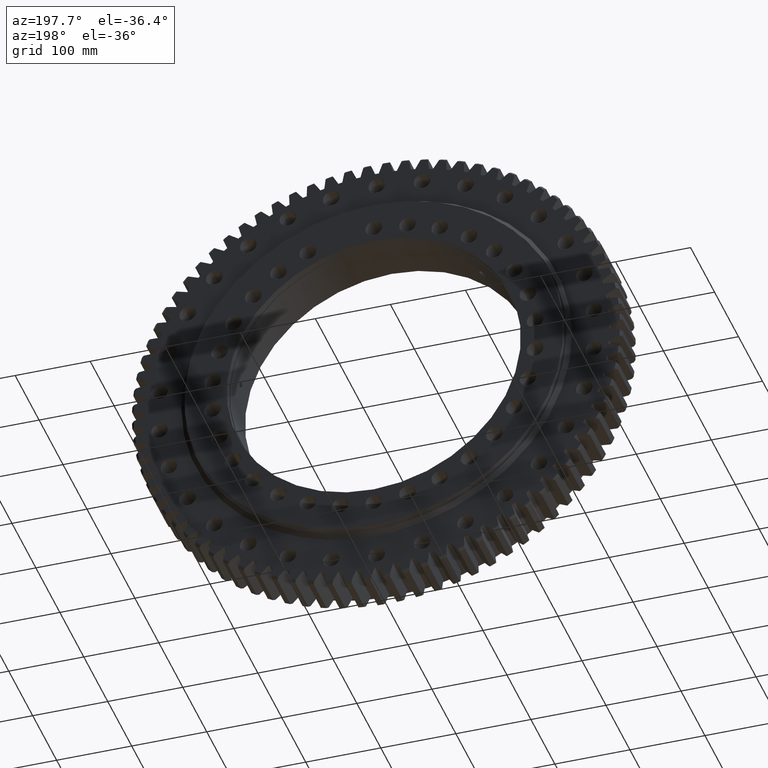
[diagram: clean part render]
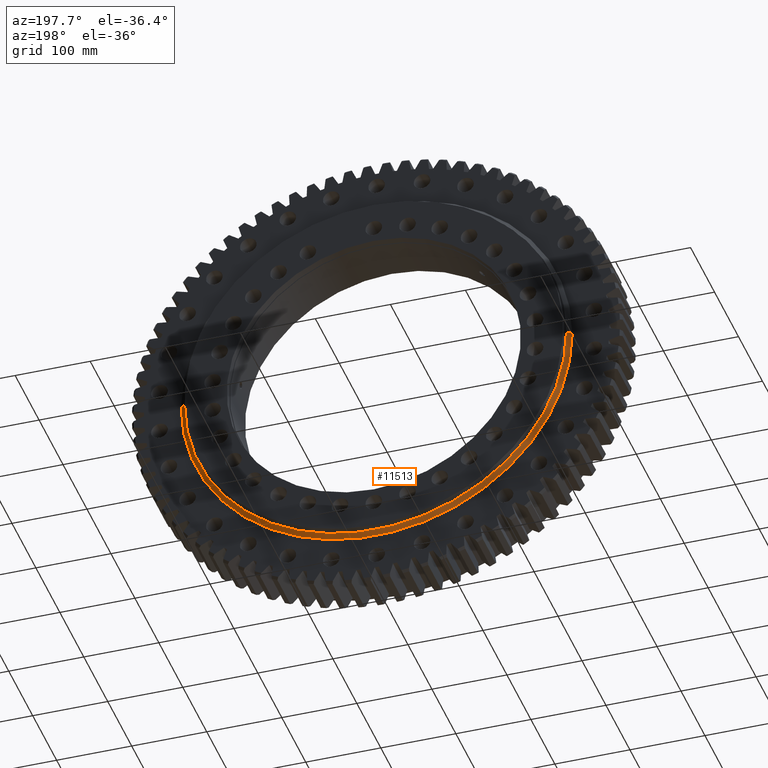
[diagram: same view with one face highlighted and labeled with its STEP entity id]
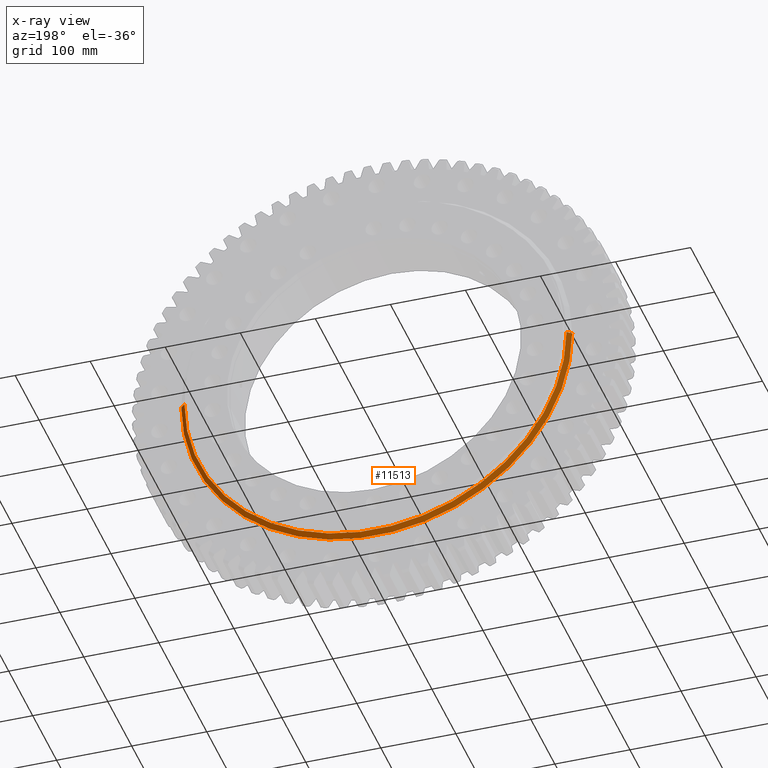
[diagram: x-ray of the same camera — body ghosted, the highlighted face saturated]
A machine part, auxiliary view. The second image highlights one B-rep face of the part: STEP entity #11513.
The next image is the same camera in x-ray: the body ghosted, the highlighted face saturated — about 0% of this face is hidden behind the body in this view.
In plain terms, the highlighted conical surface has half-angle 49.914 deg.
Its self-contained STEP definition (entity closure, byte-faithful):
#7 = DIRECTION ( 'NONE',  ( -0.7650765054985542200, -0.6439393921279554800, 9.369484935616465400E-017 ) ) ;
#2480 = VERTEX_POINT ( 'NONE', #20049 ) ;
#2627 = CIRCLE ( 'NONE', #13087, 254.5000000000000000 ) ;
#2645 = LINE ( 'NONE', #22928, #6332 ) ;
#2776 = CARTESIAN_POINT ( 'NONE',  ( -260.5000000000000000, 30.50000000000000400, 3.190204911778855000E-014 ) ) ;
#2831 = VERTEX_POINT ( 'NONE', #7181 ) ;
#3998 = VERTEX_POINT ( 'NONE', #16151 ) ;
#4066 = EDGE_LOOP ( 'NONE', ( #4861, #19641, #4796, #20512 ) ) ;
#4695 = VECTOR ( 'NONE', #7, 1000.000000000000000 ) ;
#4796 = ORIENTED_EDGE ( 'NONE', *, *, #15043, .T. ) ;
#4861 = ORIENTED_EDGE ( 'NONE', *, *, #10648, .F. ) ;
#6332 = VECTOR ( 'NONE', #13797, 1000.000000000000000 ) ;
#7181 = CARTESIAN_POINT ( 'NONE',  ( -254.5000000000000000, 35.55000000000005400, 3.153465507804434500E-014 ) ) ;
#8980 = LINE ( 'NONE', #10989, #4695 ) ;
#9227 = FACE_OUTER_BOUND ( 'NONE', #4066, .T. ) ;
#9541 = EDGE_CURVE ( 'NONE', #3998, #2831, #2627, .T. ) ;
#10102 = CARTESIAN_POINT ( 'NONE',  ( -1.929864252156052100E-016, 30.49999999999995400, 0.0000000000000000000 ) ) ;
#10648 = EDGE_CURVE ( 'NONE', #2831, #16972, #8980, .T. ) ;
#10782 = DIRECTION ( 'NONE',  ( 1.836909530733565900E-016, 1.000000000000000000, -0.0000000000000000000 ) ) ;
#10880 = AXIS2_PLACEMENT_3D ( 'NONE', #10102, #22954, #11960 ) ;
#10989 = CARTESIAN_POINT ( 'NONE',  ( -260.5000000000000000, 30.50000000000000400, 3.190204911778855700E-014 ) ) ;
#11513 = ADVANCED_FACE ( 'NONE', ( #9227 ), #17289, .T. ) ;
#11561 = DIRECTION ( 'NONE',  ( 1.000000000000000000, -1.864578016405013400E-016, 0.0000000000000000000 ) ) ;
#11960 = DIRECTION ( 'NONE',  ( -1.000000000000000000, 1.864578016405013400E-016, 0.0000000000000000000 ) ) ;
#13087 = AXIS2_PLACEMENT_3D ( 'NONE', #21784, #10782, #23649 ) ;
#13421 = CARTESIAN_POINT ( 'NONE',  ( -1.929864252156052100E-016, 30.49999999999995400, 0.0000000000000000000 ) ) ;
#13797 = DIRECTION ( 'NONE',  ( 0.7650765054985539900, -0.6439393921279557000, 0.0000000000000000000 ) ) ;
#15043 = EDGE_CURVE ( 'NONE', #3998, #2480, #2645, .T. ) ;
#15264 = DIRECTION ( 'NONE',  ( -1.836909530733565900E-016, -1.000000000000000000, 0.0000000000000000000 ) ) ;
#16151 = CARTESIAN_POINT ( 'NONE',  ( 254.5000000000000000, 35.54999999999995500, 0.0000000000000000000 ) ) ;
#16972 = VERTEX_POINT ( 'NONE', #2776 ) ;
#17289 = CONICAL_SURFACE ( 'NONE', #19713, 260.5000000000000000, 0.8711601305813053700 ) ;
#19641 = ORIENTED_EDGE ( 'NONE', *, *, #9541, .F. ) ;
#19713 = AXIS2_PLACEMENT_3D ( 'NONE', #13421, #15264, #11561 ) ;
#20049 = CARTESIAN_POINT ( 'NONE',  ( 260.5000000000000000, 30.49999999999990400, 0.0000000000000000000 ) ) ;
#20512 = ORIENTED_EDGE ( 'NONE', *, *, #23389, .T. ) ;
#21523 = CIRCLE ( 'NONE', #10880, 260.5000000000000000 ) ;
#21784 = CARTESIAN_POINT ( 'NONE',  ( 7.346528878048550900E-016, 35.55000000000000400, 0.0000000000000000000 ) ) ;
#22928 = CARTESIAN_POINT ( 'NONE',  ( 260.5000000000000000, 30.49999999999990400, 0.0000000000000000000 ) ) ;
#22954 = DIRECTION ( 'NONE',  ( 1.836909530733565900E-016, 1.000000000000000000, -0.0000000000000000000 ) ) ;
#23389 = EDGE_CURVE ( 'NONE', #2480, #16972, #21523, .T. ) ;
#23649 = DIRECTION ( 'NONE',  ( -1.000000000000000000, 1.908536633687646400E-016, 0.0000000000000000000 ) ) ;